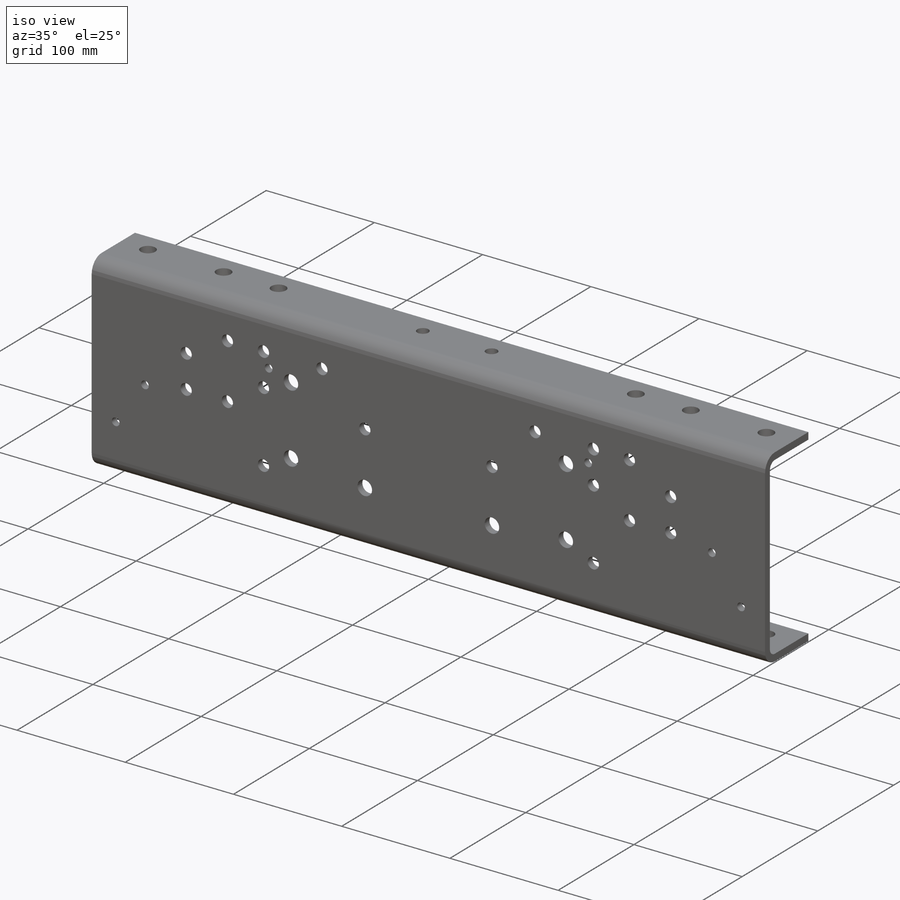
[diagram: iso view]
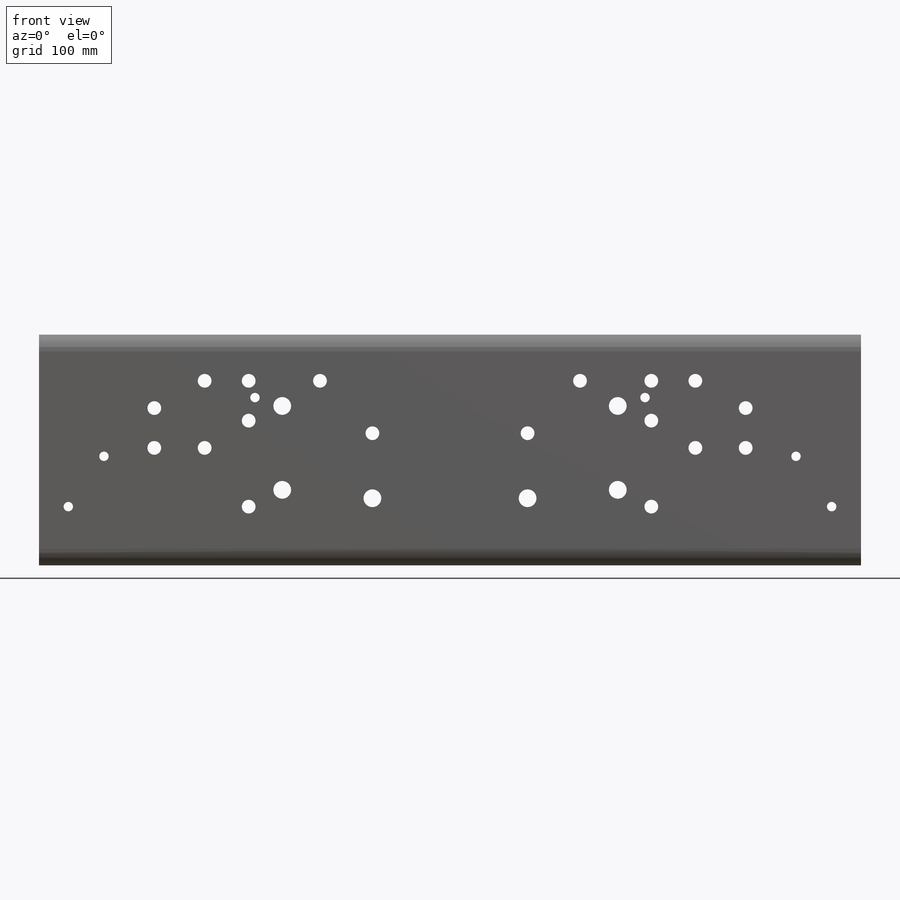
[diagram: front view]
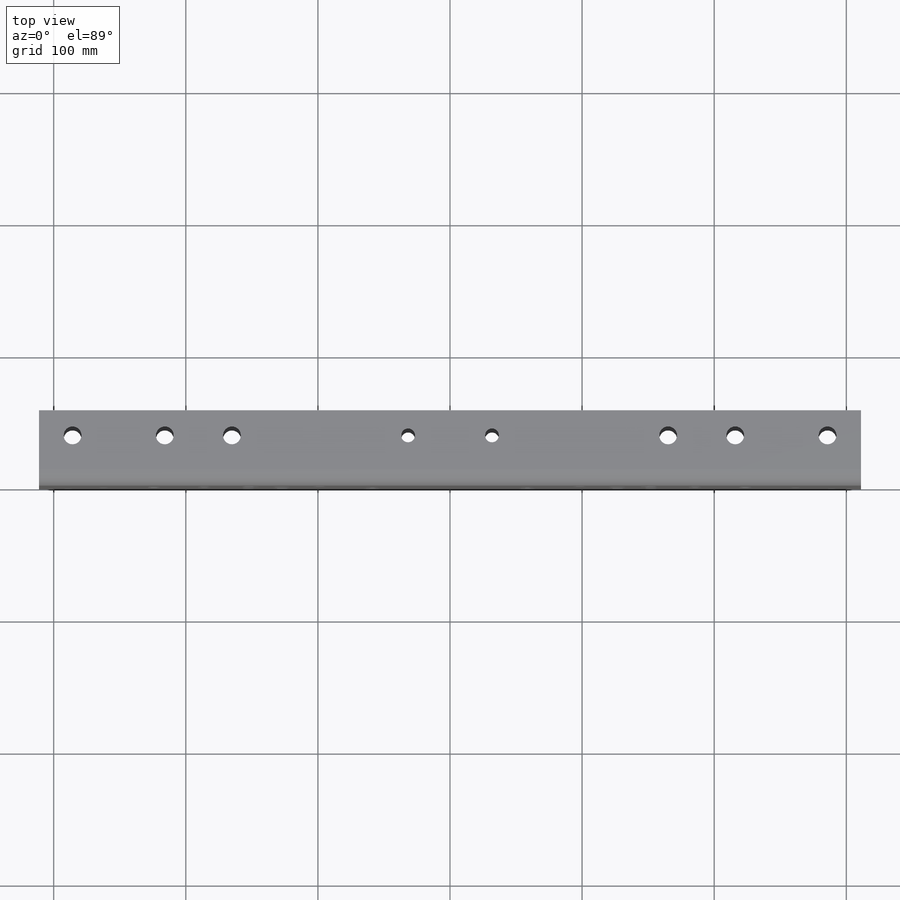
[diagram: top view]
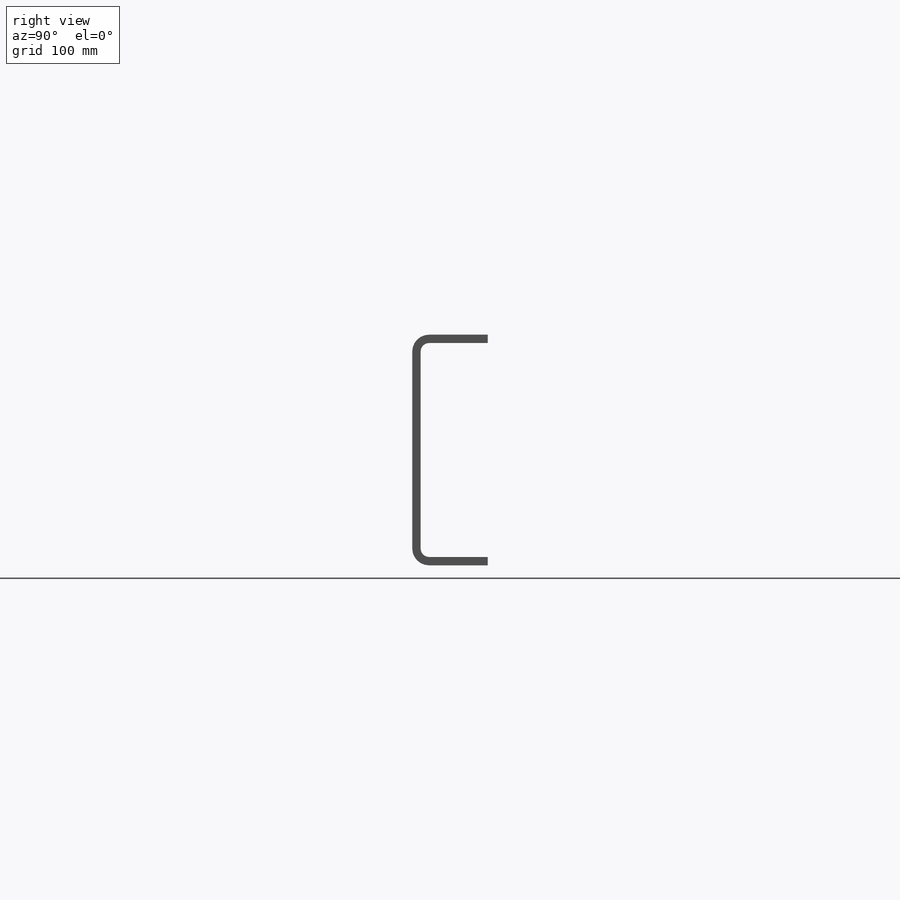
[diagram: right view]
SOLIDWORKS PART (.sldprt)
format: sldprt  version: not decoded by parser v0  size: 397,312 bytes
history: native  units: mm
features: sketch x4, cut_extrude x4, material x1, plane x1, extrude x1 (+11 scaffold rows collapsed)
feature tree (22):
  scaffold x11  (default folders/planes/origin — collapsed)
  material  "ASTM A36"
  plane  "Side"
  sketch  "Sketch1"  dims[D4=6.35mm D1=6.35mm D2=57.15mm D3=174.625mm]
  extrude  "Extrude1"  Depth=622.3mm
  sketch  "Sketch2"  dims[c1.D25=7.112mm c1.D26=10.414mm c1.D27=13.462mm c1.D30=7.112mm c1.D17=10.414mm c1.D18=10.414mm c1.D19=7.112mm c1.D20=10.414mm c1.D21=7.112mm c1.D14=10.414mm c1.D15=7.112mm c1.D22=13.462mm c1.D23=13.462mm c1.D24=13.462mm c2.D25=7.747mm c2.D27=~25.468121mm c2.D1=0.0mm c2.D2=61.9125mm c2.D3=52.3875mm c2.D4=12.7mm c2.D5=1.5875mm c2.D6=12.7mm c2.D7=52.3875mm c2.D8=0.0mm c2.D9=58.7375mm c2.D10=98.425mm c2.D11=127.0mm c2.D12=152.4mm c2.D13=185.7375mm c2.D14=233.3625mm c2.D15=261.9375mm c2.D16=288.925mm c2.D17=58.7375mm c2.D18=100.33mm c2.D19=127.0mm c2.D20=161.925mm c2.D21=203.2mm c2.D22=233.3625mm c2.D23=261.9375mm c2.D24=288.925mm c2.D28=36.5125mm c2.D29=12.7mm c3.D1=0.0mm c3.D2=25.4mm c3.D3=34.925mm c3.D4=57.15mm c3.D5=88.9mm c3.D6=120.65mm c3.D7=139.7mm c3.D28=50.8mm c3.D29=100.0125mm c3.D30=38.1mm c3.D31=31.75mm c4.D3=87.3125mm c4.D4=0.0mm c4.D5=34.925mm c4.D6=44.45mm c4.D7=50.8mm c4.D28=73.025mm c4.D29=88.9mm c4.D30=57.15mm c4.D31=120.65mm c4.D32=120.65mm c4.D33=139.7mm c5.D5=100.0125mm c5.D20=20.6375mm c5.D21=38.1mm c5.D14=71.4375mm c5.D15=26.9875mm c5.D22=38.1mm c5.D24=63.5mm c5.D25=114.3mm c5.D26=44.45mm c5.D27=20.6375mm c5.D28=88.9mm c5.D12=152.4mm]
  cut_extrude  "Cut-Web Holes"  [1 undecoded]
  sketch  "Sketch3"  dims[D7=10.414mm D8=13.462mm D1=38.1mm D2=0.0mm D3=31.75mm D4=165.1mm D5=31.75mm D6=165.1mm D9=311.15mm D10=215.9mm D11=285.75mm D12=38.1mm]
  cut_extrude  "Cut-Flg Holes"  [1 undecoded]
  sketch  "Sketch6"  dims[c1.D25=7.112mm c1.D26=10.414mm c1.D27=13.462mm c1.D30=7.112mm c1.D17=10.414mm c1.D18=10.414mm c1.D19=7.112mm c1.D20=10.414mm c1.D21=7.112mm c1.D14=10.414mm c1.D15=7.112mm c1.D22=13.462mm c1.D23=13.462mm c1.D24=13.462mm c2.D25=7.747mm c2.D27=~25.468121mm c2.D9=13.462mm c2.D5=10.414mm c2.D6=10.414mm c2.D1=0.0mm c2.D2=61.9125mm c2.D3=52.3875mm c2.D4=12.7mm c3.D5=1.5875mm c3.D6=12.7mm c3.D7=52.3875mm c3.D8=0.0mm c3.D9=58.7375mm c3.D10=98.425mm c3.D11=127.0mm c3.D12=152.4mm c3.D13=185.7375mm c3.D14=233.3625mm c3.D15=261.9375mm c3.D16=288.925mm c3.D17=58.7375mm c3.D18=100.33mm c3.D19=127.0mm c3.D20=161.925mm c3.D21=203.2mm c3.D22=233.3625mm c3.D23=261.9375mm c3.D24=288.925mm c3.D28=36.5125mm c3.D29=12.7mm c3.D1=0.0mm c3.D2=25.4mm c3.D3=34.925mm c3.D4=57.15mm c4.D5=88.9mm c4.D6=120.65mm c4.D7=139.7mm c4.D28=50.8mm c4.D29=100.0125mm c4.D30=38.1mm c4.D31=31.75mm c4.D3=87.3125mm c4.D4=0.0mm c5.D5=34.925mm c5.D6=44.45mm c5.D7=50.8mm c5.D28=73.025mm c5.D29=88.9mm c5.D30=57.15mm c5.D31=120.65mm c5.D32=120.65mm c5.D33=139.7mm c6.D5=100.0125mm c6.D20=20.6375mm c6.D21=38.1mm c6.D14=71.4375mm c6.D15=26.9875mm c6.D22=38.1mm c6.D24=63.5mm c6.D25=114.3mm c6.D26=44.45mm c6.D27=20.6375mm c6.D28=88.9mm c6.D8=58.7375mm c6.D9=68.2625mm c6.D3=119.0625mm c7.D5=87.3125mm c7.D6=87.3125mm]
  cut_extrude  "VLV-MODULATOR"  Depth=1 cosmosAttributesReplaced=1
  cut_extrude  "cosmosAttributesReplaced"  Depth=0 cosmosVersionNumber=0
decode coverage: 7 of 9 modeling features carry decoded parameters
note: ~ marks probable driven/reference dimensions
note: 2 parameter values undecoded
note: suppression state not decoded; provenance and decode notes live in map.json
